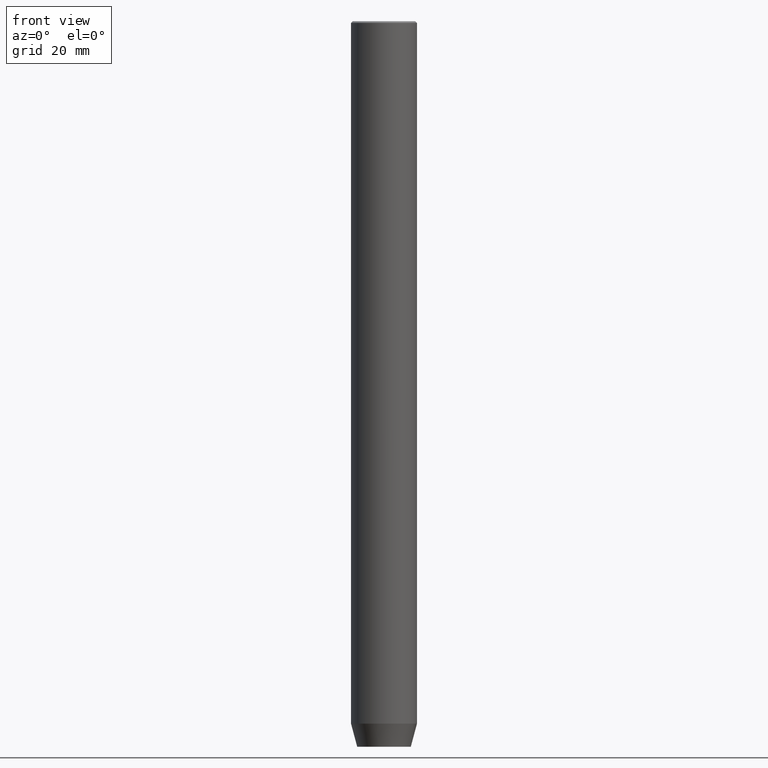
[diagram: clean part render]
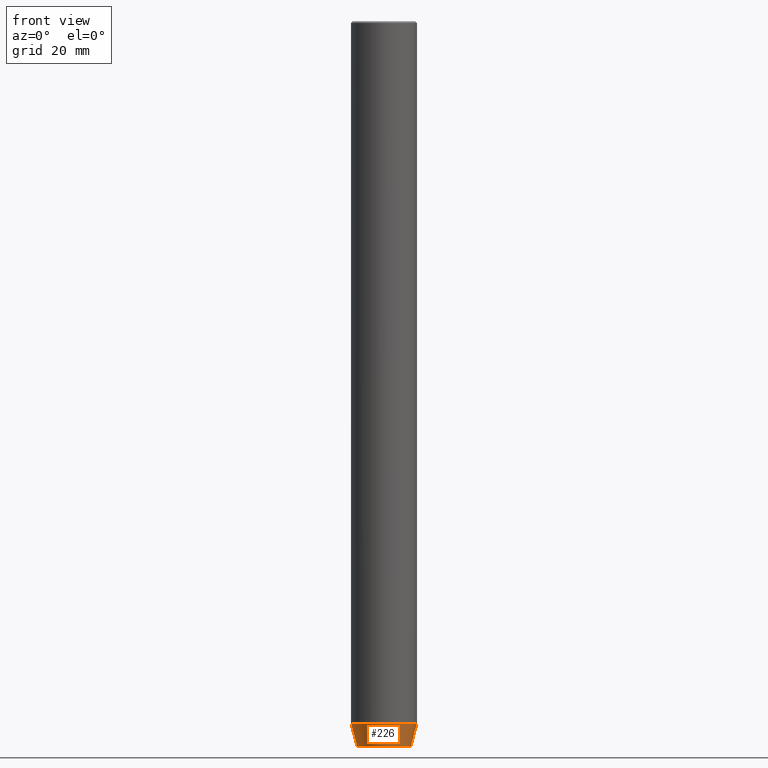
[diagram: same view with one face highlighted and labeled with its STEP entity id]
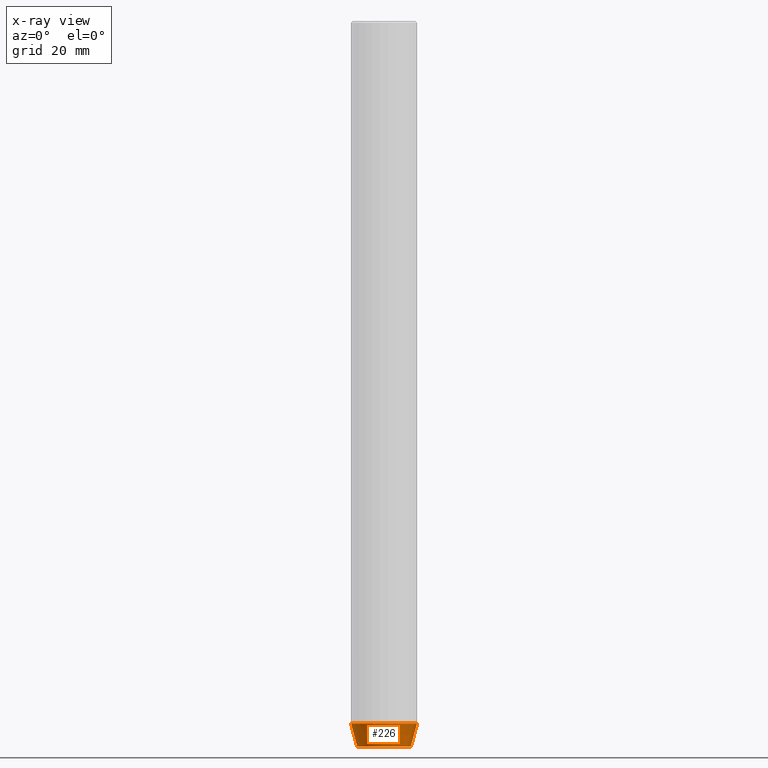
[diagram: x-ray of the same camera — body ghosted, the highlighted face saturated]
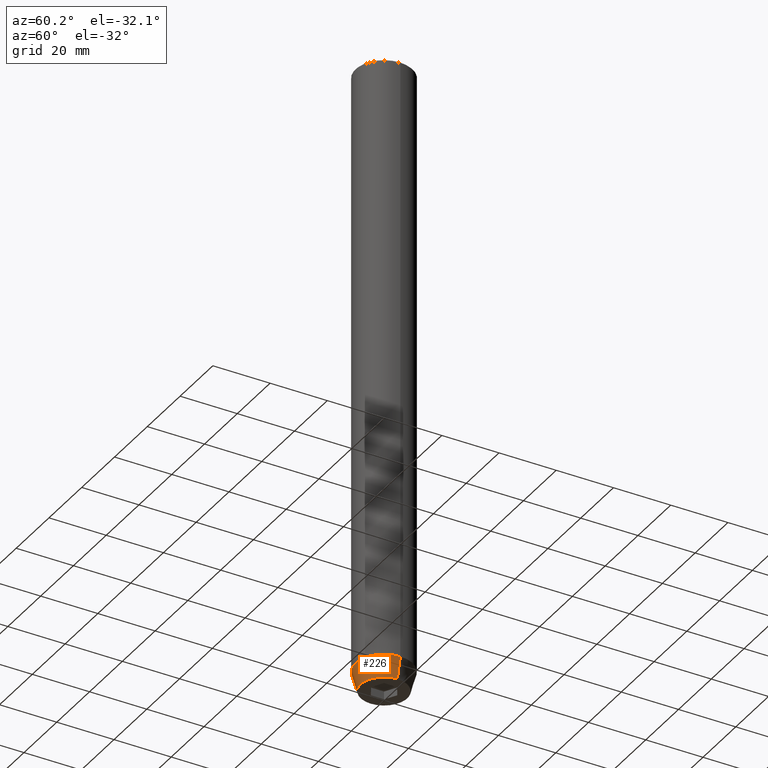
[diagram: same view with one face highlighted and labeled with its STEP entity id]
A machine part, front view. The second image highlights one B-rep face of the part: STEP entity #226.
The next image is the same camera in x-ray: the body ghosted, the highlighted face saturated — about 0% of this face is hidden behind the body in this view.
A second angle (auxiliary view) of the same face is appended — the face is thin or edge-on in the first view.
In plain terms, the highlighted conical surface has half-angle 15 deg.
Its self-contained STEP definition (entity closure, byte-faithful):
#4 = VERTEX_POINT ( 'NONE', #357 ) ;
#15 = CARTESIAN_POINT ( 'NONE',  ( 0.000000000000000000, 0.000000000000000000, -220.0000000000000000 ) ) ;
#21 = VERTEX_POINT ( 'NONE', #259 ) ;
#84 = CIRCLE ( 'NONE', #513, 8.124355652982130138 ) ;
#97 = CARTESIAN_POINT ( 'NONE',  ( 0.000000000000000000, 0.000000000000000000, -212.9999999999999716 ) ) ;
#104 = DIRECTION ( 'NONE',  ( 1.000000000000000000, 0.000000000000000000, 0.000000000000000000 ) ) ;
#174 = EDGE_CURVE ( 'NONE', #319, #21, #84, .T. ) ;
#204 = ORIENTED_EDGE ( 'NONE', *, *, #501, .F. ) ;
#206 = DIRECTION ( 'NONE',  ( 0.2588190451025210170, 0.000000000000000000, 0.9659258262890680902 ) ) ;
#226 = ADVANCED_FACE ( 'NONE', ( #377 ), #483, .T. ) ;
#259 = CARTESIAN_POINT ( 'NONE',  ( 8.124355652982130138, 0.000000000000000000, -220.0000000000000000 ) ) ;
#295 = EDGE_CURVE ( 'NONE', #21, #4, #438, .T. ) ;
#300 = AXIS2_PLACEMENT_3D ( 'NONE', #487, #383, #526 ) ;
#305 = ORIENTED_EDGE ( 'NONE', *, *, #449, .F. ) ;
#319 = VERTEX_POINT ( 'NONE', #491 ) ;
#344 = CARTESIAN_POINT ( 'NONE',  ( -10.00000000000000000, 1.224646799147353256E-15, -212.9999999999999716 ) ) ;
#357 = CARTESIAN_POINT ( 'NONE',  ( 10.00000000000000000, 0.000000000000000000, -212.9999999999999716 ) ) ;
#363 = ORIENTED_EDGE ( 'NONE', *, *, #295, .T. ) ;
#369 = VECTOR ( 'NONE', #206, 1000.000000000000114 ) ;
#370 = DIRECTION ( 'NONE',  ( -0.000000000000000000, -0.000000000000000000, 1.000000000000000000 ) ) ;
#375 = VERTEX_POINT ( 'NONE', #577 ) ;
#377 = FACE_OUTER_BOUND ( 'NONE', #584, .T. ) ;
#383 = DIRECTION ( 'NONE',  ( -0.000000000000000000, -0.000000000000000000, 1.000000000000000000 ) ) ;
#390 = CARTESIAN_POINT ( 'NONE',  ( 10.00000000000000000, 0.000000000000000000, -212.9999999999999716 ) ) ;
#438 = LINE ( 'NONE', #390, #369 ) ;
#441 = AXIS2_PLACEMENT_3D ( 'NONE', #97, #522, #104 ) ;
#449 = EDGE_CURVE ( 'NONE', #319, #375, #570, .T. ) ;
#483 = CONICAL_SURFACE ( 'NONE', #441, 10.00000000000000000, 0.2617993877991497409 ) ;
#485 = DIRECTION ( 'NONE',  ( -0.2588190451025210170, 3.169619151431768639E-17, 0.9659258262890680902 ) ) ;
#487 = CARTESIAN_POINT ( 'NONE',  ( 0.000000000000000000, 0.000000000000000000, -212.9999999999999716 ) ) ;
#491 = CARTESIAN_POINT ( 'NONE',  ( -8.124355652982130138, 1.109796706851640162E-15, -220.0000000000000000 ) ) ;
#495 = CIRCLE ( 'NONE', #300, 10.00000000000000000 ) ;
#501 = EDGE_CURVE ( 'NONE', #375, #4, #495, .T. ) ;
#513 = AXIS2_PLACEMENT_3D ( 'NONE', #15, #370, #563 ) ;
#522 = DIRECTION ( 'NONE',  ( -0.000000000000000000, -0.000000000000000000, 1.000000000000000000 ) ) ;
#526 = DIRECTION ( 'NONE',  ( 1.000000000000000000, 0.000000000000000000, 0.000000000000000000 ) ) ;
#534 = VECTOR ( 'NONE', #485, 1000.000000000000114 ) ;
#556 = ORIENTED_EDGE ( 'NONE', *, *, #174, .T. ) ;
#563 = DIRECTION ( 'NONE',  ( 1.000000000000000000, 0.000000000000000000, 0.000000000000000000 ) ) ;
#570 = LINE ( 'NONE', #344, #534 ) ;
#577 = CARTESIAN_POINT ( 'NONE',  ( -10.00000000000000000, 1.224646799147353256E-15, -212.9999999999999716 ) ) ;
#584 = EDGE_LOOP ( 'NONE', ( #305, #556, #363, #204 ) ) ;